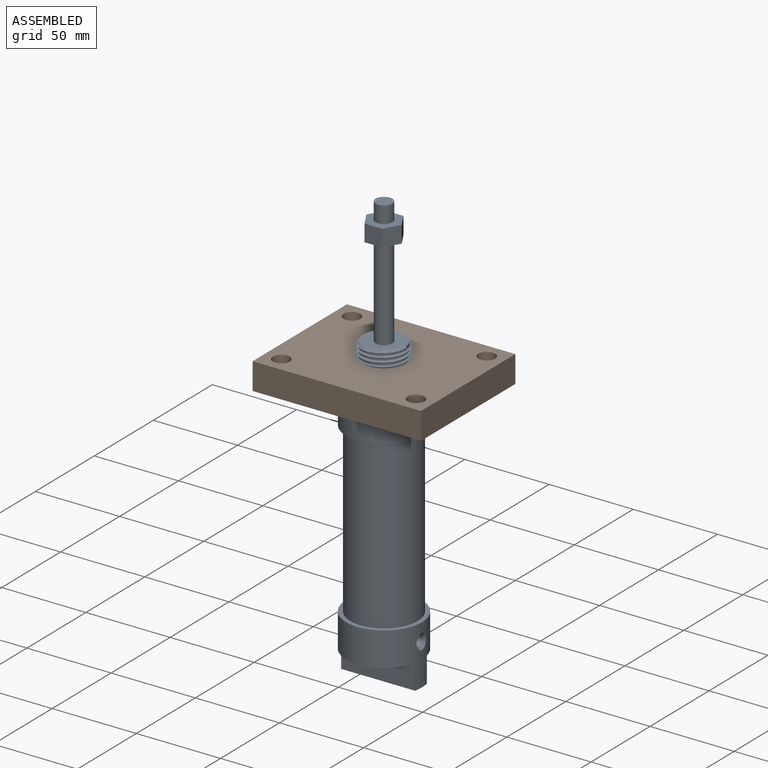
[diagram: assembled view]
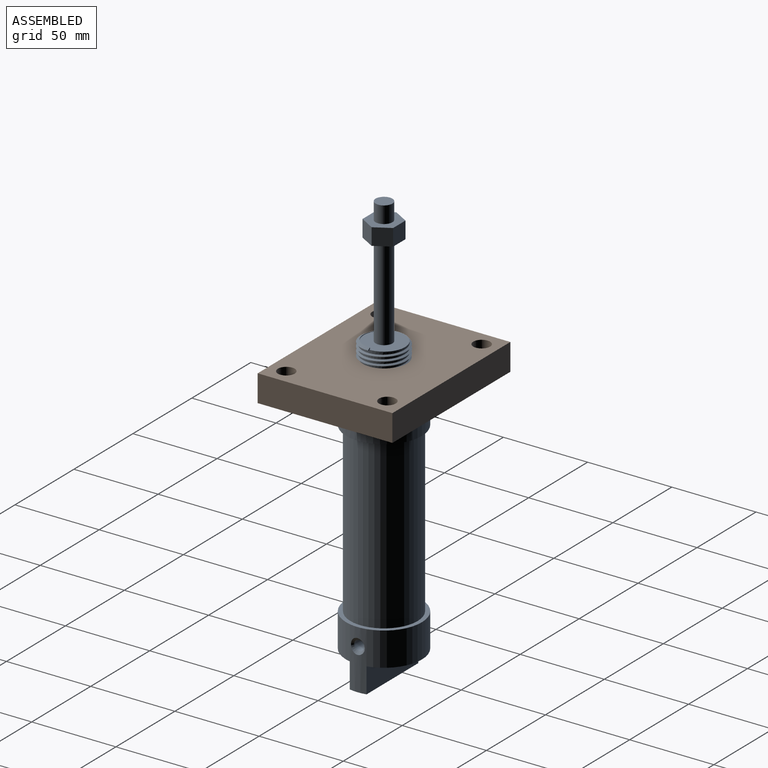
[diagram: assembled view, second angle]
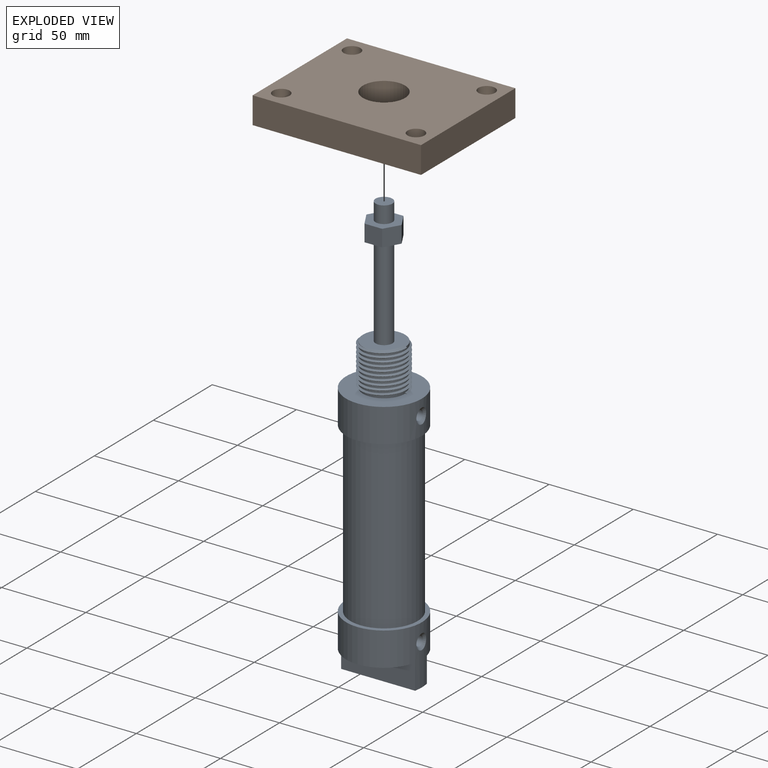
[diagram: exploded view]
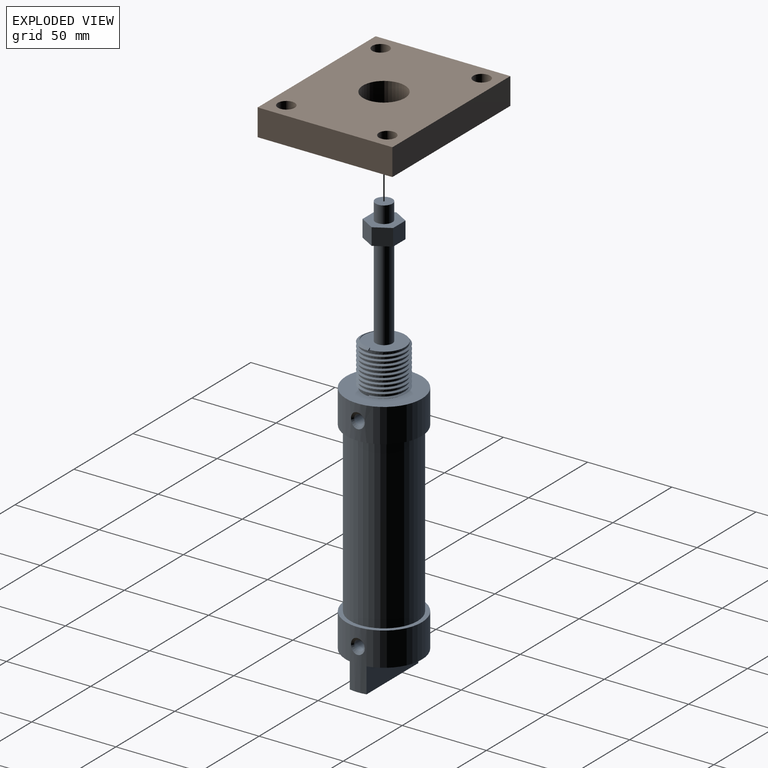
[diagram: exploded view, second angle]
ASSEMBLY  parts=2 mates=3
PART A: 35 faces, bbox 45.2x255.2x45.2 mm
  f0: plane 43.88x17.5mm, normal (0,-1,0), area 572.1mm2, adj f3,f33
  f1: cylinder r=5mm len=55mm, axis (0,-1,0), area 1727.9mm2, adj f5,f29
  f2: cylinder r=22.5mm len=45mm, axis (0,-1,0), area 2769.7mm2, adj f9,f10,f19
  f3: cylinder r=22.5mm len=45mm, axis (0,1,0), area 3072.2mm2, adj f0,f6,f7,f16,f32,f33,f34
  f4: cylinder r=12.5mm len=25mm, axis (0,-1,0), area 1056.1mm2, adj f5,f9,f11,f12,f13,f15
  f5: plane 25.21x25.17mm, normal (0,1,0), area 397.6mm2, adj f1,f4,f11,f14,f15
  f6: plane 43.88x17.5mm, normal (0,-1,0), area 572.1mm2, adj f3,f32
  f7: plane 45x45mm, normal (0,1,0), area 333.8mm2, adj f3,f8
  f8: cylinder r=20mm len=100mm, axis (0,-1,0), area 12566.4mm2, adj f7,f10
  f9: plane 45x45mm, normal (0,1,0), area 1087.3mm2, adj f2,f4,f12,f13
  f10: plane 45x45mm, normal (0,-1,0), area 333.8mm2, adj f2,f8
  f11: plane 1.75x1.66mm, normal (0,0,-1), area 1.3mm2, adj f4,f5,f13,f14,f15
  f12: plane 1.15x0.66mm, normal (0,0,1), area 0.4mm2, adj f4,f9,f13,f15
  f13: bspline ~31.53x27.31mm, area 1093.9mm2, adj f4,f9,f11,f12,f15
  f14: bspline ~23.89x13.79mm, area 14.7mm2, adj f5,f11,f15
  f15: bspline ~31.53x27.31mm, area 1097.7mm2, adj f4,f5,f11,f12,f13,f14
  f16: cone r=3mm half-angle=45deg, axis (1,0,0), area 38.7mm2, adj f3,f17
  f17: cylinder r=3mm len=10mm, axis (1,0,0), area 188.5mm2, adj f16,f18
  f18: cone r=0mm half-angle=59deg, axis (1,0,0), area 33mm2, adj f17
  f19: cone r=3mm half-angle=45deg, axis (1,0,0), area 38.7mm2, adj f2,f20
  f20: cylinder r=3mm len=10mm, axis (1,0,0), area 188.5mm2, adj f19,f21
  f21: cone r=0mm half-angle=59deg, axis (1,0,0), area 33mm2, adj f20
  f22: plane 10.49x10mm, normal (0,0,-1), area 104.9mm2, adj f23,f27,f28,f29
  f23: plane 10x9.07mm, normal (-0.87,0,-0.5), area 104.9mm2, adj f22,f24,f28,f29
  f24: plane 10x9.09mm, normal (-0.87,0,0.5), area 104.9mm2, adj f23,f25,f28,f29
  f25: plane 10.49x10mm, normal (0,0,1), area 104.9mm2, adj f24,f26,f28,f29
  f26: plane 10x9.07mm, normal (0.87,0,0.5), area 104.9mm2, adj f25,f27,f28,f29
  f27: plane 10x9.09mm, normal (0.87,0,-0.5), area 104.9mm2, adj f22,f26,f28,f29
  f28: plane 20.97x18.17mm, normal (0,1,0), area 207.1mm2, adj f22,f23,f24,f25,f26,f27,f31
  f29: plane 20.97x18.17mm, normal (0,-1,0), area 207.1mm2, adj f1,f22,f23,f24,f25,f26,f27
  f30: plane 10x10mm, normal (0,1,0), area 78.5mm2, adj f31
  f31: cylinder r=5mm len=10mm, axis (0,-1,0), area 314.2mm2, adj f28,f30
  f32: plane 43.88x15mm, normal (0,0,-1), area 658.1mm2, adj f3,f6,f34
  f33: plane 43.88x15mm, normal (0,0,1), area 658.1mm2, adj f0,f3,f34
  f34: plane 45x10mm, normal (0,-1,0), area 446.3mm2, adj f3,f32,f33
PART B: 11 faces, bbox 100x80x16 mm
  f0: plane 100x16mm, normal (0,-1,0), area 1600mm2, adj f1,f3,f4,f5
  f1: plane 80x16mm, normal (1,0,0), area 1280mm2, adj f0,f2,f4,f5
  f2: plane 100x16mm, normal (0,1,0), area 1600mm2, adj f1,f3,f4,f5
  f3: plane 80x16mm, normal (-1,0,0), area 1280mm2, adj f0,f2,f4,f5
  f4: plane 100x80mm, normal (0,0,1), area 7195mm2, adj f0,f1,f2,f3,f6,f7,f8,f9
  f5: plane 100x80mm, normal (0,0,-1), area 7195mm2, adj f0,f1,f2,f3,f6,f7,f8,f9
  f6: cylinder r=12.5mm len=25mm, axis (0,0,1), area 1256.6mm2, adj f4,f5
  f7: cylinder r=5mm len=16mm, axis (0,0,1), area 502.7mm2, adj f4,f5
  f8: cylinder r=5mm len=16mm, axis (0,0,1), area 502.7mm2, adj f4,f5
  f9: cylinder r=5mm len=16mm, axis (0,0,1), area 502.7mm2, adj f4,f5
  f10: cylinder r=5mm len=16mm, axis (0,0,1), area 502.7mm2, adj f4,f5
PLACE A rot(axis=(1,0,0),90deg) t=(-33.81,-34.48,-17.34)mm
PLACE B t=(-33.81,-34.48,102.66)mm
MATE parallel A.f9 <-> B.f6  axis (0,0,1) through (-21.31,-34.48,102.66)mm
MATE cylindrical B.f6 <-> A.f2  axis (0,0,1) through (-33.81,-34.48,118.66)mm
MATE planar A.f9 <-> B.f5  axis (0,0,1) through (-24.96,-24.87,102.66)mm
